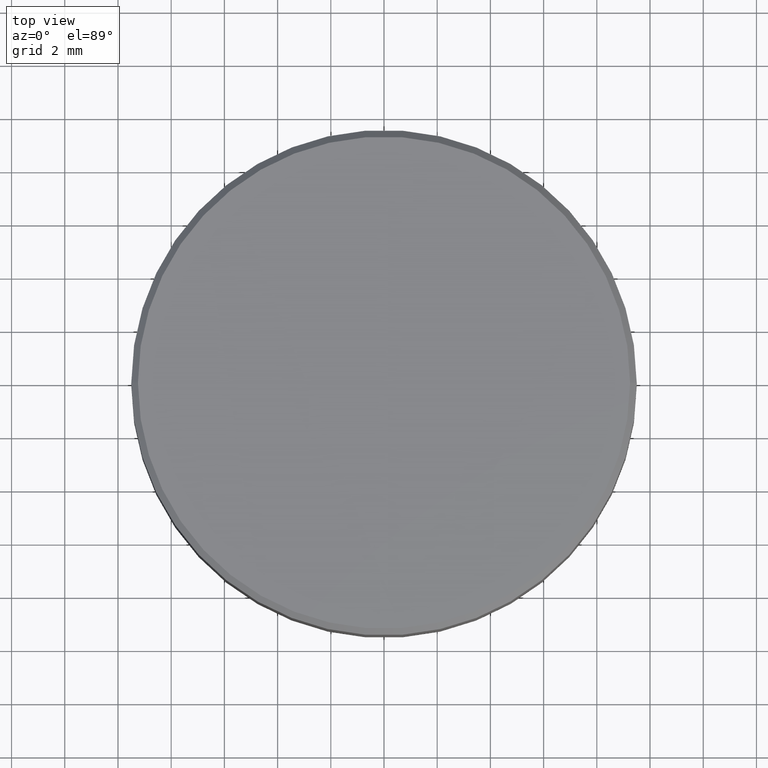
[diagram: clean part render]
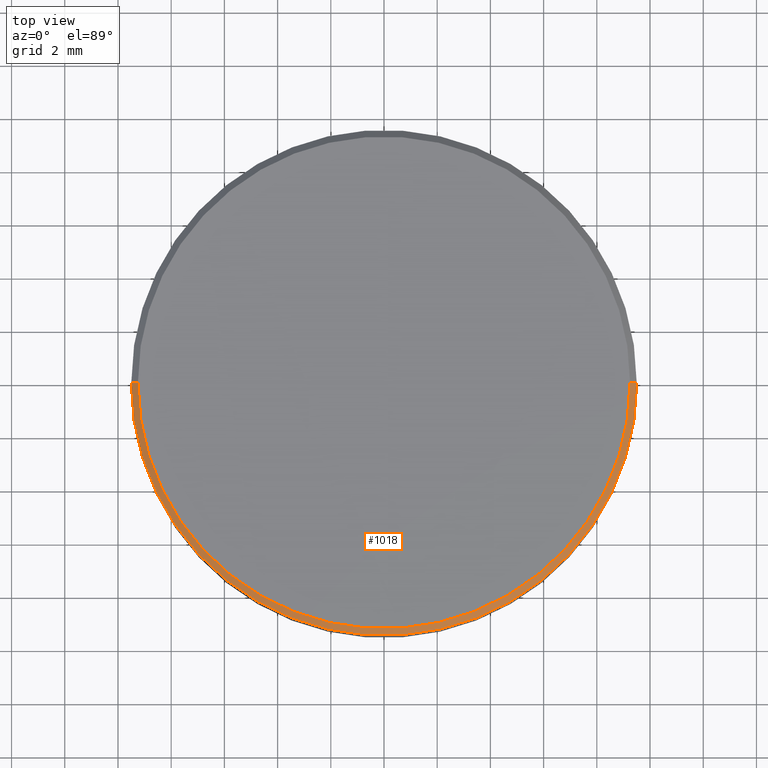
[diagram: same view with one face highlighted and labeled with its STEP entity id]
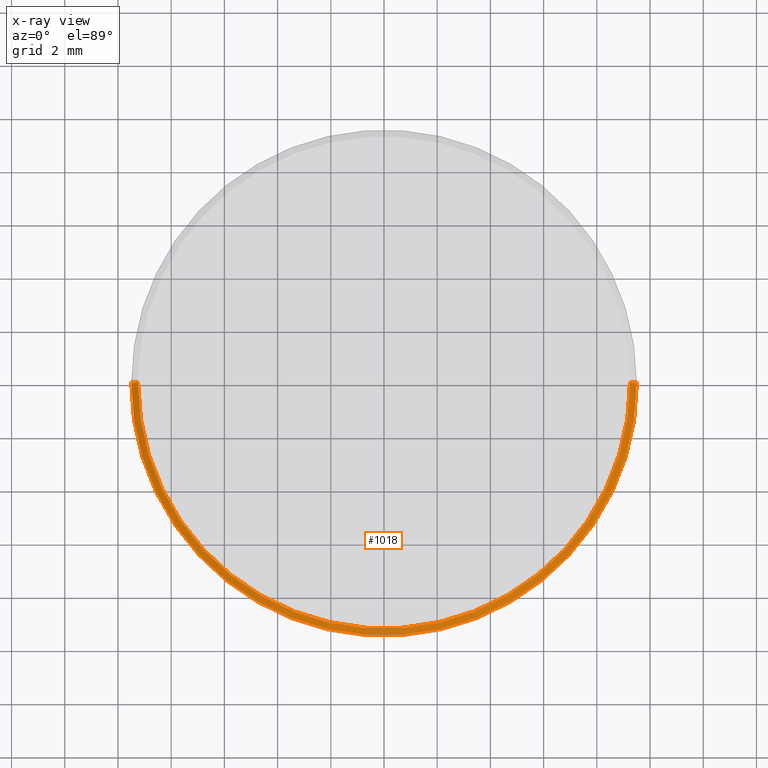
[diagram: x-ray of the same camera — body ghosted, the highlighted face saturated]
A machine part, top view. The second image highlights one B-rep face of the part: STEP entity #1018.
The next image is the same camera in x-ray: the body ghosted, the highlighted face saturated — about 0% of this face is hidden behind the body in this view.
In plain terms, the highlighted conical surface has half-angle 45 deg.
Its self-contained STEP definition (entity closure, byte-faithful):
#425 = ORIENTED_EDGE ( 'NONE', *, *, #1474, .T. ) ;
#475 = ORIENTED_EDGE ( 'NONE', *, *, #3290, .F. ) ;
#536 = DIRECTION ( 'NONE',  ( 0.0000000000000000000, 0.0000000000000000000, -1.000000000000000000 ) ) ;
#820 = DIRECTION ( 'NONE',  ( 0.0000000000000000000, 0.0000000000000000000, 1.000000000000000000 ) ) ;
#869 = CIRCLE ( 'NONE', #2702, 0.3641732283464568800 ) ;
#926 = VERTEX_POINT ( 'NONE', #7121 ) ;
#1018 = ADVANCED_FACE ( 'NONE', ( #10136 ), #5639, .T. ) ;
#1474 = EDGE_CURVE ( 'NONE', #926, #3050, #7168, .T. ) ;
#1779 = AXIS2_PLACEMENT_3D ( 'NONE', #2275, #536, #6269 ) ;
#1842 = CARTESIAN_POINT ( 'NONE',  ( 0.3641732283464568800, 4.459835784296465500E-017, 0.1181102362204724500 ) ) ;
#2104 = DIRECTION ( 'NONE',  ( 0.7071067811865450200, 8.659560562354903300E-017, -0.7071067811865499000 ) ) ;
#2152 = CARTESIAN_POINT ( 'NONE',  ( 0.3641732283464568800, 4.520103835435605500E-017, 0.1181102362204724500 ) ) ;
#2275 = CARTESIAN_POINT ( 'NONE',  ( 0.0000000000000000000, 0.0000000000000000000, 0.1181102362204724500 ) ) ;
#2471 = EDGE_CURVE ( 'NONE', #7635, #6852, #7559, .T. ) ;
#2702 = AXIS2_PLACEMENT_3D ( 'NONE', #5544, #820, #6356 ) ;
#3050 = VERTEX_POINT ( 'NONE', #4649 ) ;
#3290 = EDGE_CURVE ( 'NONE', #6852, #3050, #3468, .T. ) ;
#3468 = CIRCLE ( 'NONE', #4694, 0.3740157480314960600 ) ;
#3681 = CARTESIAN_POINT ( 'NONE',  ( 0.0000000000000000000, 0.0000000000000000000, 0.1082677165354332000 ) ) ;
#4295 = EDGE_CURVE ( 'NONE', #926, #7635, #869, .T. ) ;
#4494 = DIRECTION ( 'NONE',  ( 1.000000000000000000, 0.0000000000000000000, 0.0000000000000000000 ) ) ;
#4500 = ORIENTED_EDGE ( 'NONE', *, *, #2471, .F. ) ;
#4576 = DIRECTION ( 'NONE',  ( -0.7071067811865450200, 0.0000000000000000000, -0.7071067811865499000 ) ) ;
#4649 = CARTESIAN_POINT ( 'NONE',  ( -0.3740157480314960600, 0.0000000000000000000, 0.1082677165354332000 ) ) ;
#4694 = AXIS2_PLACEMENT_3D ( 'NONE', #3681, #9259, #4494 ) ;
#5008 = VECTOR ( 'NONE', #4576, 39.37007874015748900 ) ;
#5123 = CARTESIAN_POINT ( 'NONE',  ( -0.3641732283464568800, 0.0000000000000000000, 0.1181102362204724500 ) ) ;
#5544 = CARTESIAN_POINT ( 'NONE',  ( 0.0000000000000000000, 0.0000000000000000000, 0.1181102362204724500 ) ) ;
#5639 = CONICAL_SURFACE ( 'NONE', #1779, 0.3641732283464568800, 0.7853981633974447300 ) ;
#6269 = DIRECTION ( 'NONE',  ( -1.000000000000000000, 0.0000000000000000000, 0.0000000000000000000 ) ) ;
#6356 = DIRECTION ( 'NONE',  ( 1.000000000000000000, 0.0000000000000000000, 0.0000000000000000000 ) ) ;
#6401 = EDGE_LOOP ( 'NONE', ( #4500, #6591, #425, #475 ) ) ;
#6591 = ORIENTED_EDGE ( 'NONE', *, *, #4295, .F. ) ;
#6695 = CARTESIAN_POINT ( 'NONE',  ( 0.3740157480314960600, 4.580371886574746100E-017, 0.1082677165354332000 ) ) ;
#6852 = VERTEX_POINT ( 'NONE', #6695 ) ;
#7121 = CARTESIAN_POINT ( 'NONE',  ( -0.3641732283464568800, 0.0000000000000000000, 0.1181102362204724500 ) ) ;
#7168 = LINE ( 'NONE', #5123, #5008 ) ;
#7559 = LINE ( 'NONE', #1842, #9593 ) ;
#7635 = VERTEX_POINT ( 'NONE', #2152 ) ;
#9259 = DIRECTION ( 'NONE',  ( 0.0000000000000000000, 0.0000000000000000000, -1.000000000000000000 ) ) ;
#9593 = VECTOR ( 'NONE', #2104, 39.37007874015748900 ) ;
#10136 = FACE_OUTER_BOUND ( 'NONE', #6401, .T. ) ;